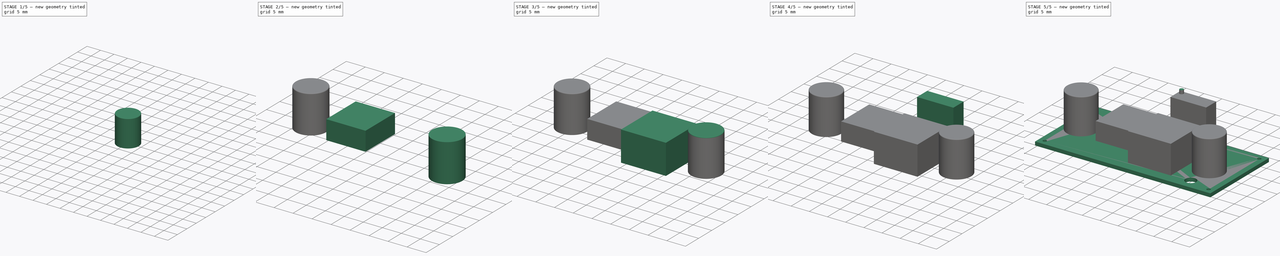
[diagram: build sequence overview — one tinted view per stage of 5, left to right]
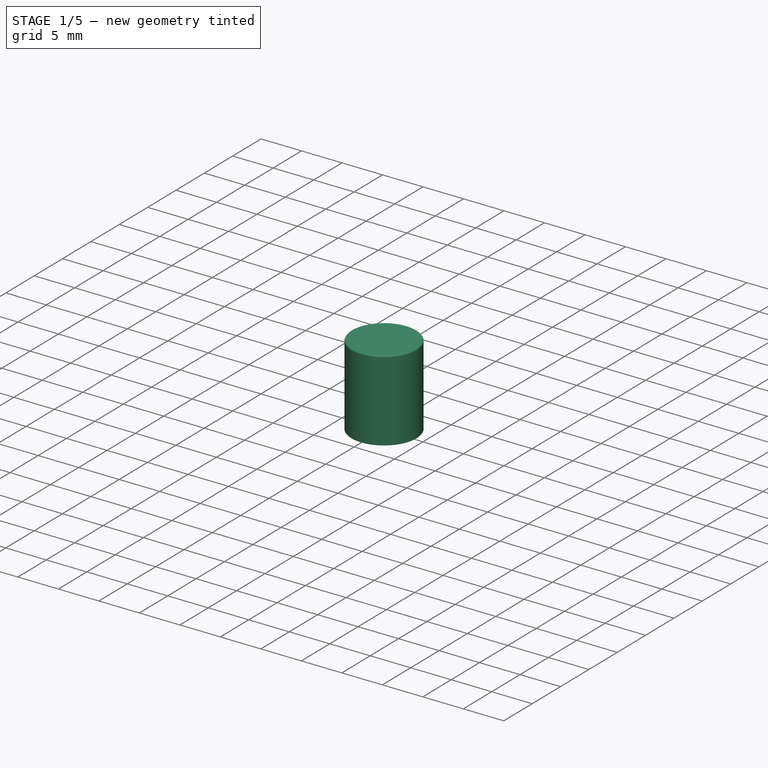
[diagram: stage 1 of 5 — iso view after this stage's code; geometry added in this stage tinted green]
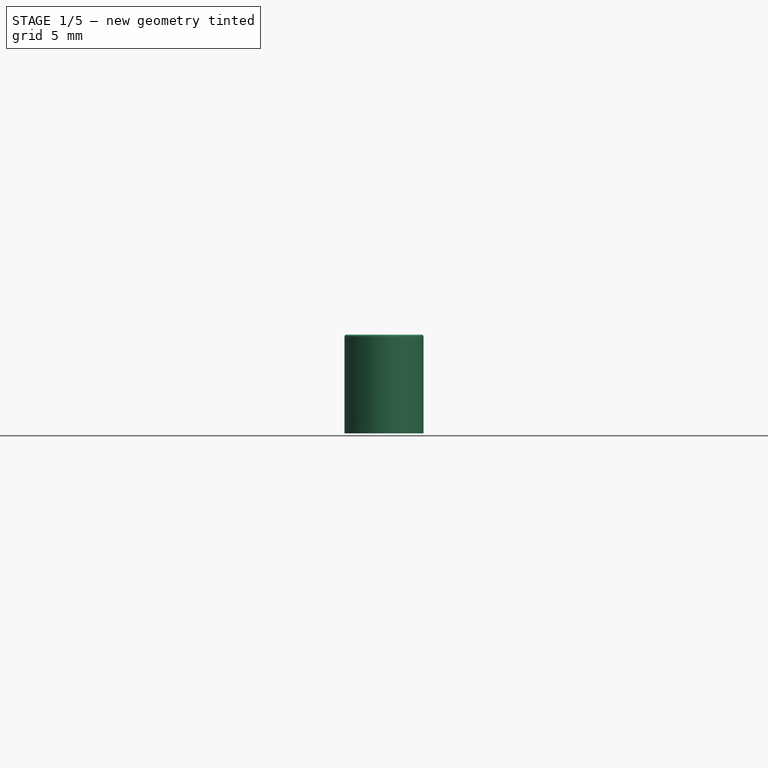
[diagram: stage 1 of 5 — front view after this stage's code; geometry added in this stage tinted green]
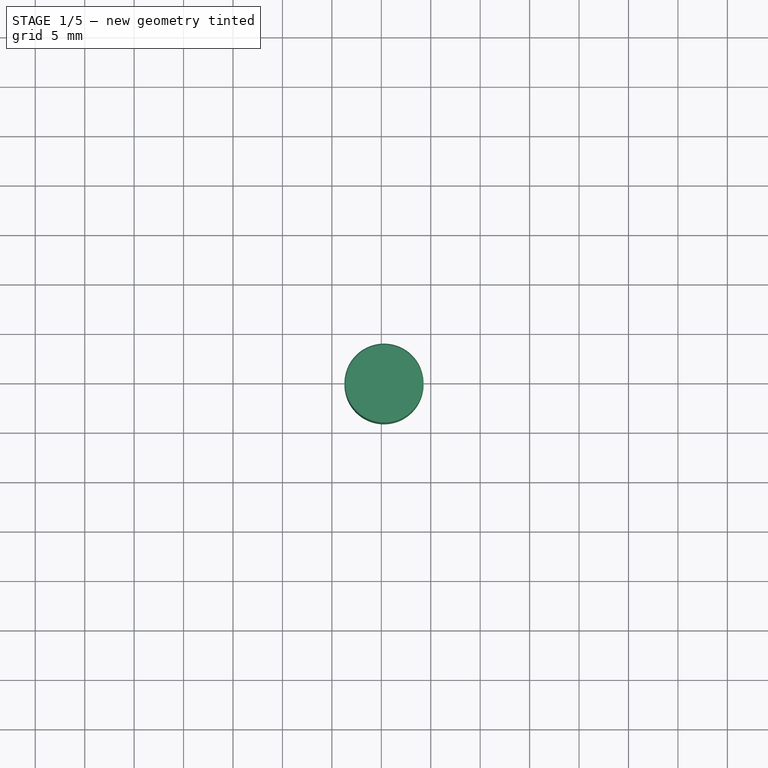
[diagram: stage 1 of 5 — top view after this stage's code; geometry added in this stage tinted green]
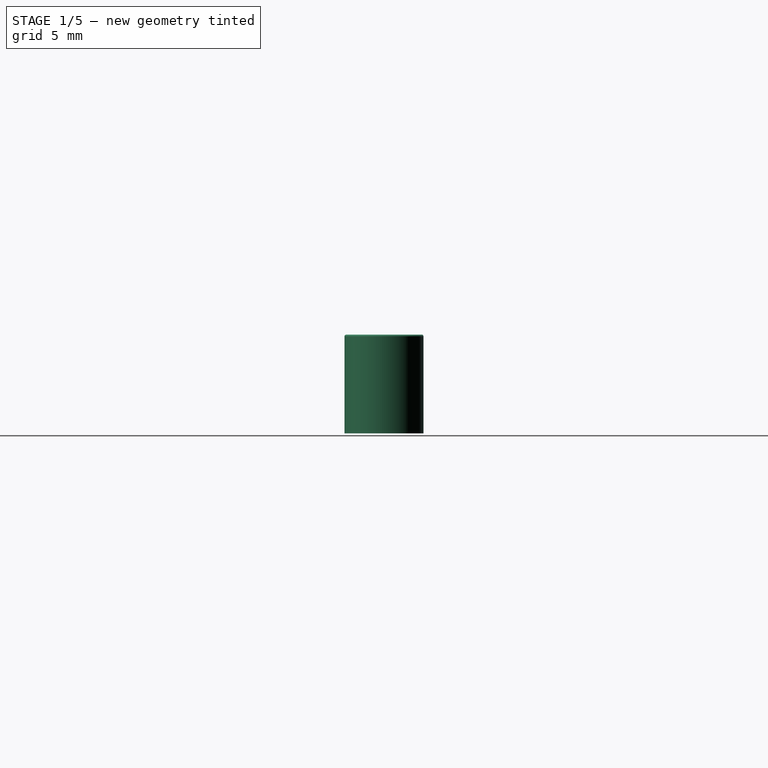
[diagram: stage 1 of 5 — right view after this stage's code; geometry added in this stage tinted green]
FCSTD DOCUMENT  (FreeCAD 0.16R6692 (Git))
Label: step-down-n9505
License: All rights reserved
LicenseURL: http://en.wikipedia.org/wiki/All_rights_reserved
objects: Sketcher::SketchObject×8, PartDesign::Pad×7, Part::FeaturePython×6, PartDesign::Fillet×3
note: 31 computed .brp shape members not serialized (recipe doc carries the construction recipe); baked Part::Feature solids carry a one-line shape summary decoded from their .brp

FEATURE [Sketcher::SketchObject] Sketch002  label="parts001"
  sketch-geometry (1):
    g0: Circle CenterX=-19.7286 CenterY=-0.104942 CenterZ=0 NormalX=0 NormalY=0 NormalZ=1 Radius=4
  constraints (1):
    c: Radius(g0) = 4
FEATURE [Sketcher::SketchObject] Sketch003  label="parts002"
  sketch-geometry (4):
    g0: LineSegment StartX=-13.3686 StartY=7.65234 StartZ=0 EndX=-3.04249 EndY=7.65234 EndZ=0
    g1: LineSegment StartX=-3.04249 StartY=7.65234 StartZ=0 EndX=-3.04249 EndY=-3.41128 EndZ=0
    g2: LineSegment StartX=-3.04249 StartY=-3.41128 StartZ=0 EndX=-13.3686 EndY=-3.41128 EndZ=0
    g3: LineSegment StartX=-13.3686 StartY=-3.41128 StartZ=0 EndX=-13.3686 EndY=7.65234 EndZ=0
  constraints (8):
    c: Coincident(g0,g1)
    c: Coincident(g1,g2)
    c: Coincident(g2,g3)
    c: Coincident(g3,g0)
    c: Horizontal(g0)
    c: Horizontal(g2)
    c: Vertical(g1)
    c: Vertical(g3)
FEATURE [Sketcher::SketchObject] Sketch004  label="parts003"
  sketch-geometry (4):
    g0: LineSegment StartX=-0.474332 StartY=3.05585 StartZ=0 EndX=11.5257 EndY=3.05585 EndZ=0
    g1: LineSegment StartX=11.5257 StartY=3.05585 StartZ=0 EndX=11.5257 EndY=-8.94415 EndZ=0
    g2: LineSegment StartX=11.5257 StartY=-8.94415 StartZ=0 EndX=-0.474332 EndY=-8.94415 EndZ=0
    g3: LineSegment StartX=-0.474332 StartY=-8.94415 StartZ=0 EndX=-0.474332 EndY=3.05585 EndZ=0
  constraints (10):
    c: Coincident(g0,g1)
    c: Coincident(g1,g2)
    c: Coincident(g2,g3)
    c: Coincident(g3,g0)
    c: Horizontal(g0)
    c: Horizontal(g2)
    c: Vertical(g1)
    c: Vertical(g3)
    c: DistanceY(g1,g1) = 12
    c: DistanceX(g2,g2) = 12
FEATURE [Sketcher::SketchObject] Sketch006  label="parts005"
  sketch-geometry (1):
    g0: Circle CenterX=17.3186 CenterY=-1.85006 CenterZ=0 NormalX=0 NormalY=0 NormalZ=1 Radius=4
  constraints (1):
    c: Radius(g0) = 4
FEATURE [Sketcher::SketchObject] Sketch007  label="parts004"
  sketch-geometry (4):
    g0: LineSegment StartX=0.569451 StartY=10.5319 StartZ=0 EndX=10.5695 EndY=10.5319 EndZ=0
    g1: LineSegment StartX=10.5695 StartY=10.5319 StartZ=0 EndX=10.5695 EndY=6.53193 EndZ=0
    g2: LineSegment StartX=10.5695 StartY=6.53193 StartZ=0 EndX=0.569451 EndY=6.53193 EndZ=0
    g3: LineSegment StartX=0.569451 StartY=6.53193 StartZ=0 EndX=0.569451 EndY=10.5319 EndZ=0
  constraints (10):
    c: Coincident(g0,g1)
    c: Coincident(g1,g2)
    c: Coincident(g2,g3)
    c: Coincident(g3,g0)
    c: Horizontal(g0)
    c: Horizontal(g2)
    c: Vertical(g1)
    c: Vertical(g3)
    c: DistanceX(g2,g2) = 10
    c: DistanceY(g1,g1) = 4
FEATURE [PartDesign::Pad] Pad001
  Length = 10
  Length2 = 100
  Sketch = -> Sketch002
  Type = 0
FEATURE [PartDesign::Fillet] Fillet
  Base = -> Pad001 [Edge3]
  Radius = 0.2
FEATURE [Part::FeaturePython] Clone005  label="Clone of Fillet"  # Draft clone (typed FeaturePython)
  Objects = -> [Fillet]
  Placement = pos=(0,0,1) rot=(0,0,1;0rad)
  Scale = (1,1,1)
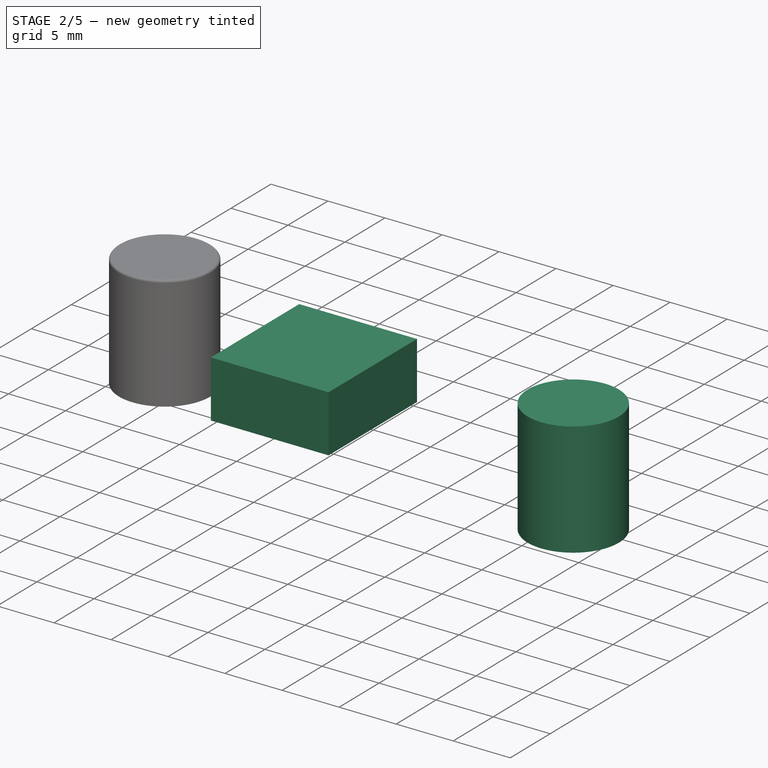
[diagram: stage 2 of 5 — iso view after this stage's code; geometry added in this stage tinted green]
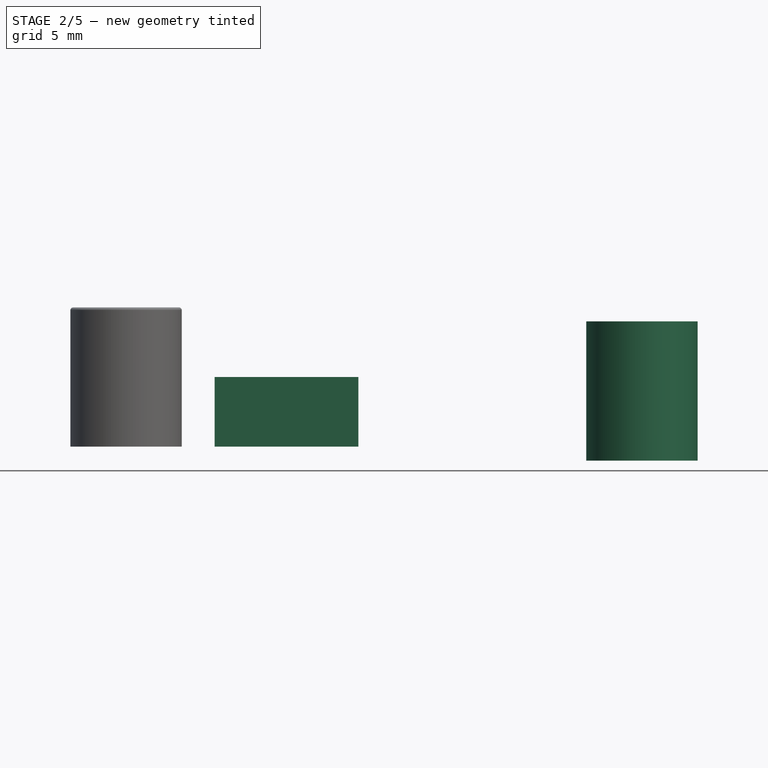
[diagram: stage 2 of 5 — front view after this stage's code; geometry added in this stage tinted green]
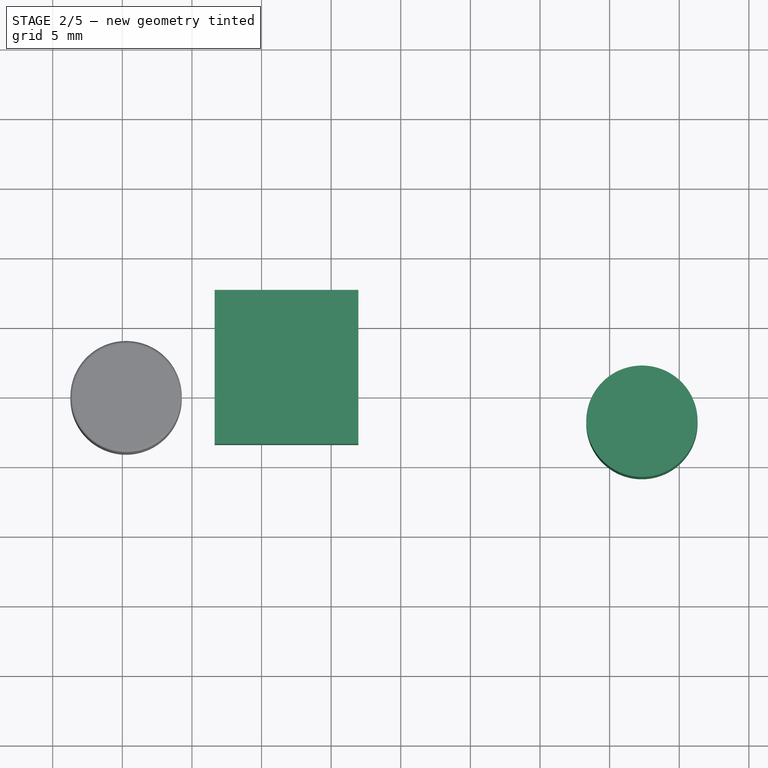
[diagram: stage 2 of 5 — top view after this stage's code; geometry added in this stage tinted green]
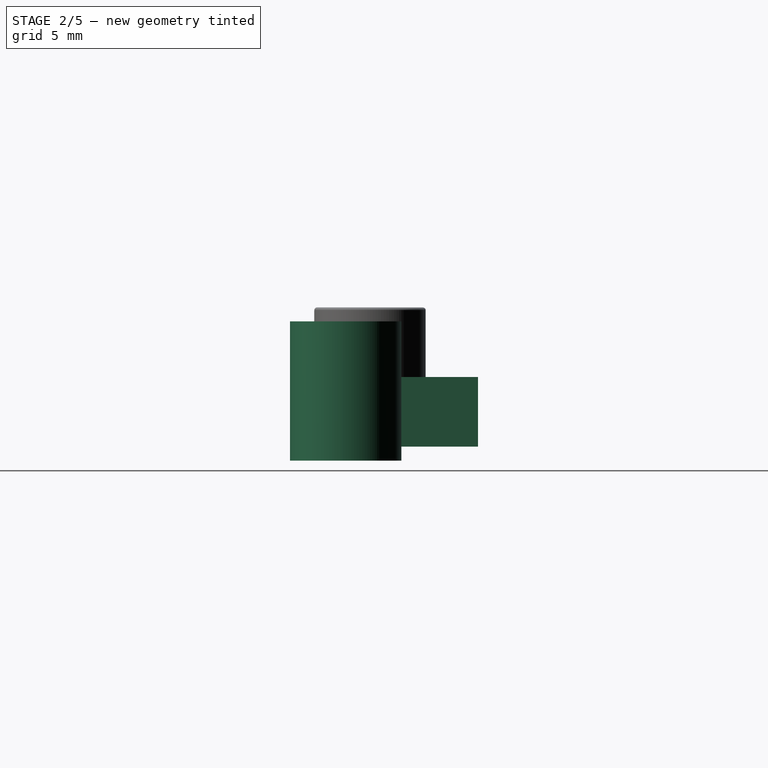
[diagram: stage 2 of 5 — right view after this stage's code; geometry added in this stage tinted green]
FEATURE [PartDesign::Pad] Pad002
  Length = 5
  Length2 = 100
  Sketch = -> Sketch003
  Type = 0
FEATURE [PartDesign::Pad] Pad003
  Length = 10
  Length2 = 100
  Sketch = -> Sketch006
  Type = 0
FEATURE [Part::FeaturePython] Clone004  label="Clone of Pad002"  # Draft clone (typed FeaturePython)
  Objects = -> [Pad002]
  Placement = pos=(0,0,1) rot=(0,0,1;0rad)
  Scale = (1,1,1)
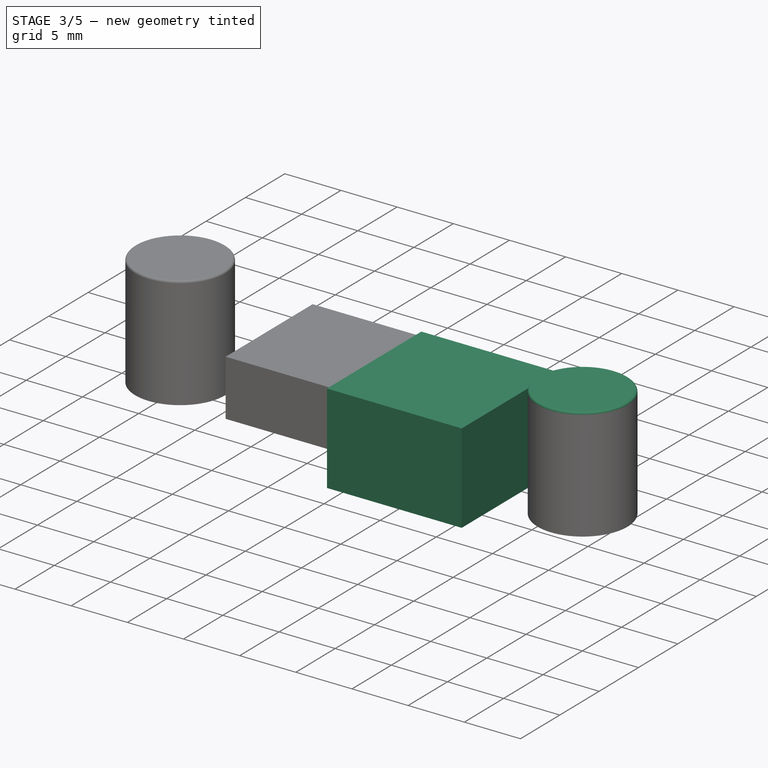
[diagram: stage 3 of 5 — iso view after this stage's code; geometry added in this stage tinted green]
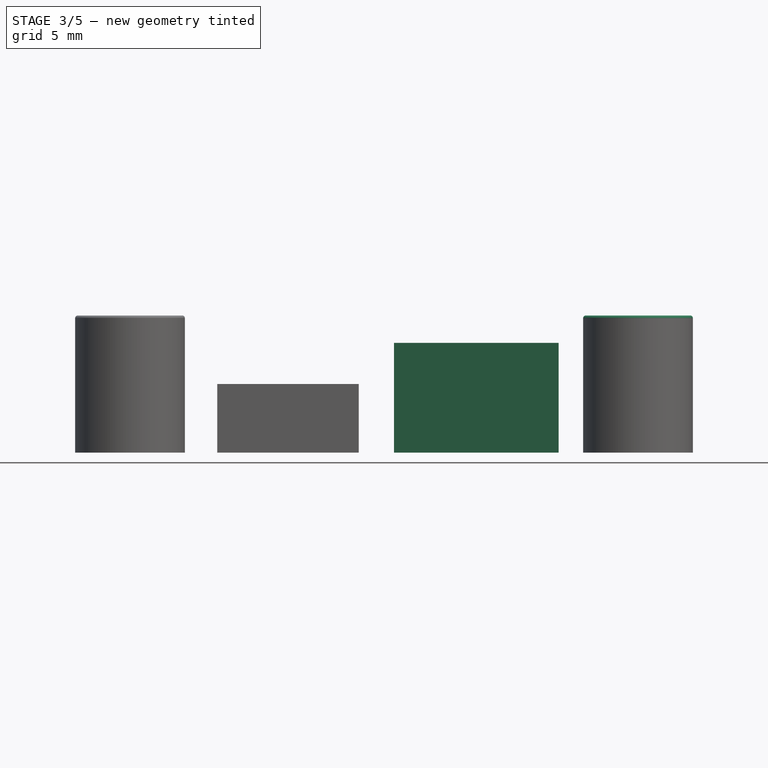
[diagram: stage 3 of 5 — front view after this stage's code; geometry added in this stage tinted green]
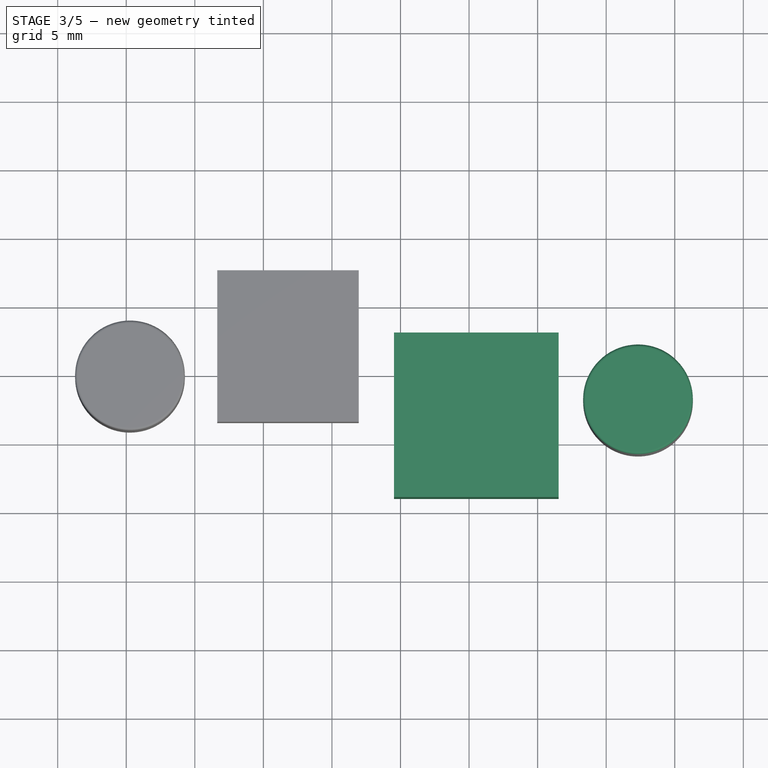
[diagram: stage 3 of 5 — top view after this stage's code; geometry added in this stage tinted green]
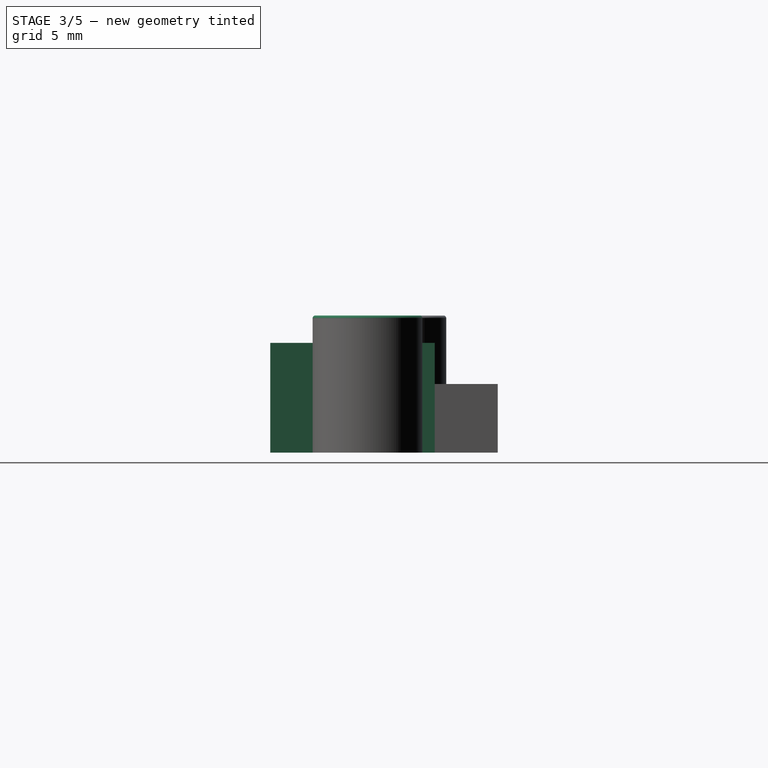
[diagram: stage 3 of 5 — right view after this stage's code; geometry added in this stage tinted green]
FEATURE [PartDesign::Fillet] Fillet001
  Base = -> Pad003 [Edge3]
  Radius = 0.2
FEATURE [PartDesign::Pad] Pad004
  Length = 8
  Length2 = 100
  Sketch = -> Sketch004
  Type = 0
FEATURE [Part::FeaturePython] Clone002  label="Clone of Pad004"  # Draft clone (typed FeaturePython)
  Objects = -> [Pad004]
  Placement = pos=(0,0,1) rot=(0,0,1;0rad)
  Scale = (1,1,1)
FEATURE [Part::FeaturePython] Clone003  label="Clone of Fillet001"  # Draft clone (typed FeaturePython)
  Objects = -> [Fillet001]
  Placement = pos=(0,0,1) rot=(0,0,1;0rad)
  Scale = (1,1,1)
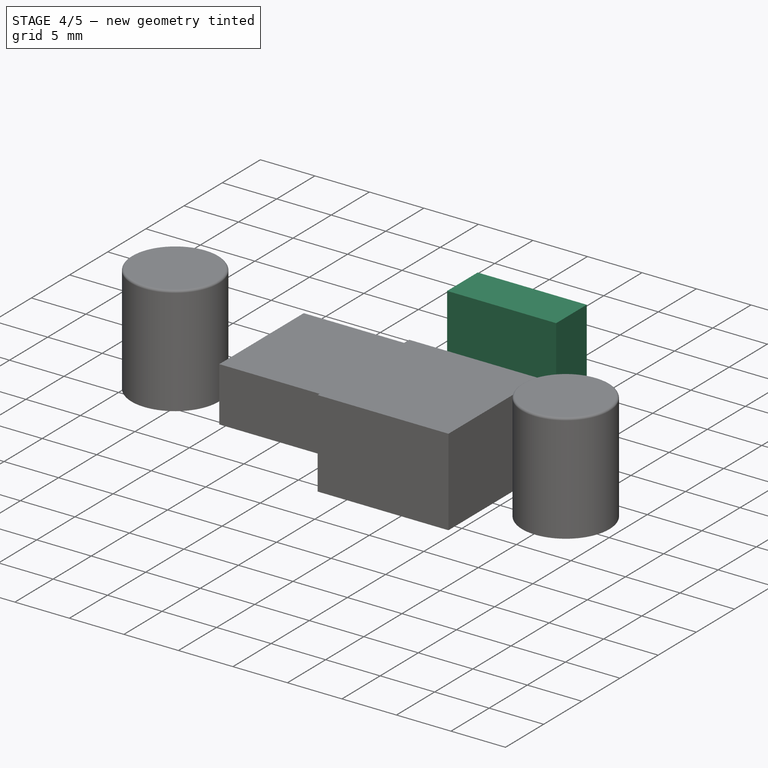
[diagram: stage 4 of 5 — iso view after this stage's code; geometry added in this stage tinted green]
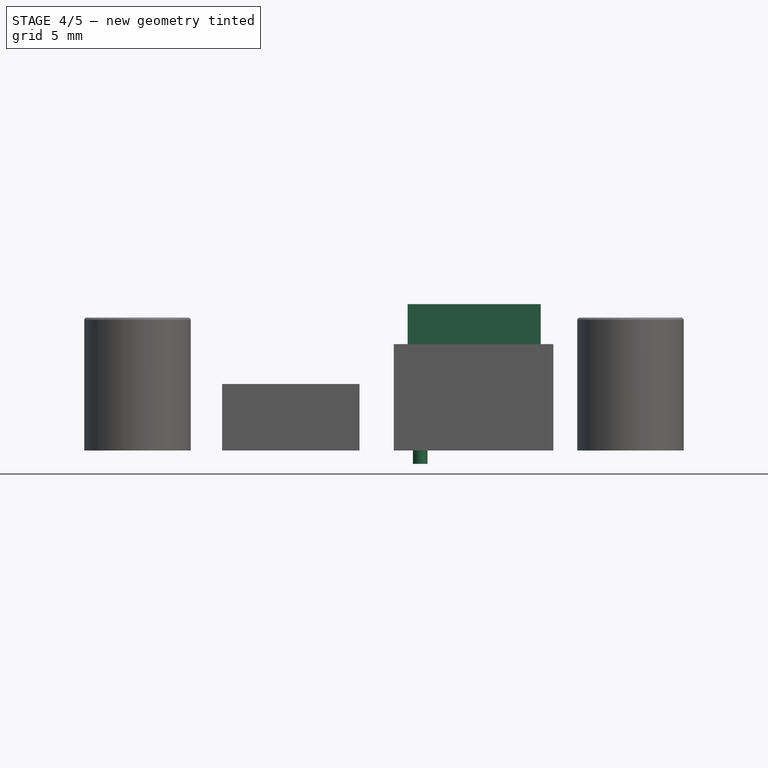
[diagram: stage 4 of 5 — front view after this stage's code; geometry added in this stage tinted green]
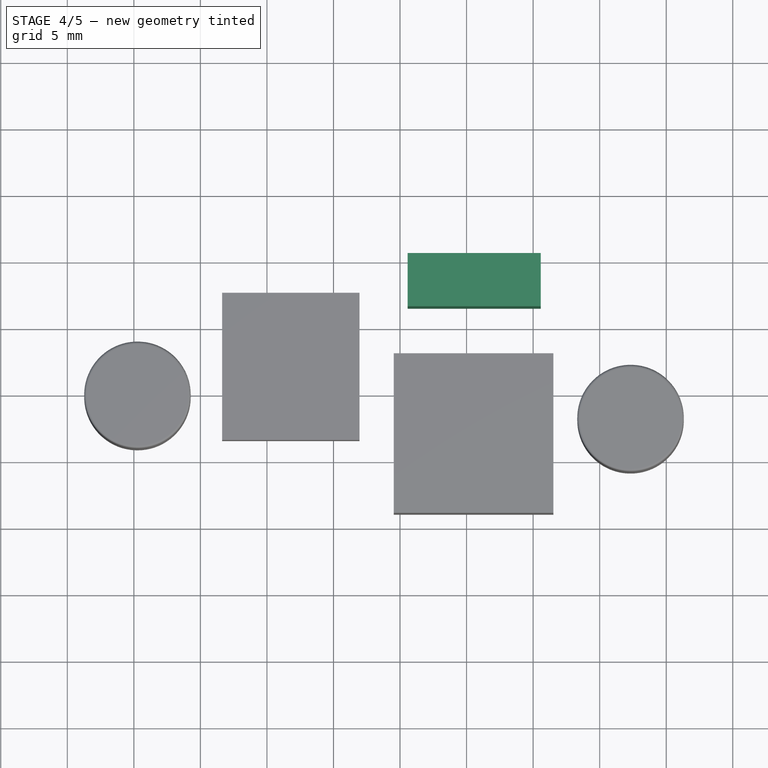
[diagram: stage 4 of 5 — top view after this stage's code; geometry added in this stage tinted green]
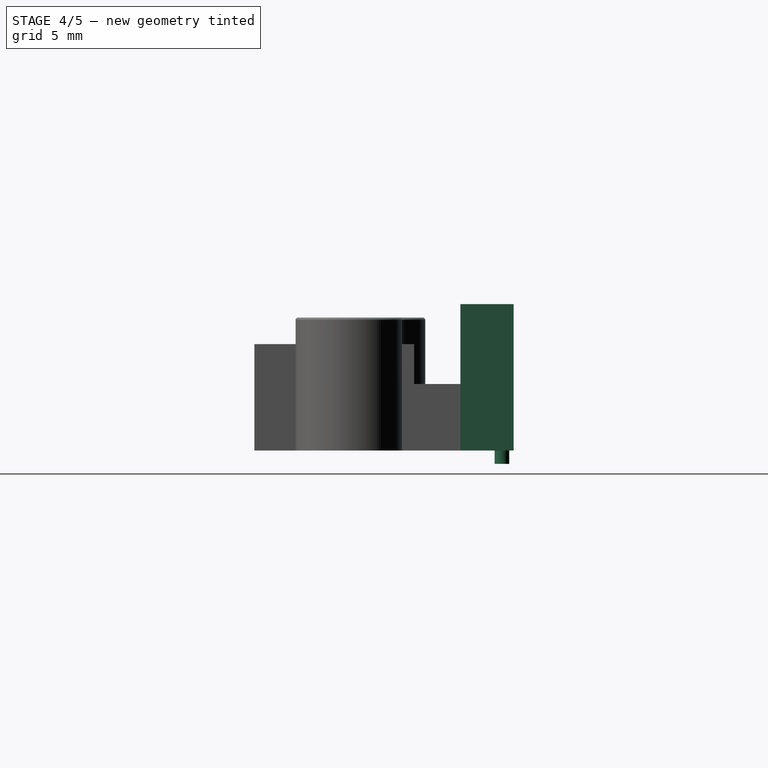
[diagram: stage 4 of 5 — right view after this stage's code; geometry added in this stage tinted green]
FEATURE [PartDesign::Pad] Pad005
  Length = 11
  Length2 = 100
  Sketch = -> Sketch007
  Type = 0
FEATURE [Sketcher::SketchObject] Sketch008  label="parts006"
  sketch-geometry (1):
    g0: Circle CenterX=1.51629 CenterY=9.65199 CenterZ=0 NormalX=0 NormalY=0 NormalZ=1 Radius=0.55
  constraints (1):
    c: Radius(g0) = 0.55
FEATURE [PartDesign::Pad] Pad006
  Length = 12
  Length2 = 100
  Sketch = -> Sketch008
  Type = 0
FEATURE [Part::FeaturePython] Clone001  label="Clone of Pad005"  # Draft clone (typed FeaturePython)
  Objects = -> [Pad005]
  Placement = pos=(0,0,1) rot=(0,0,1;0rad)
  Scale = (1,1,1)
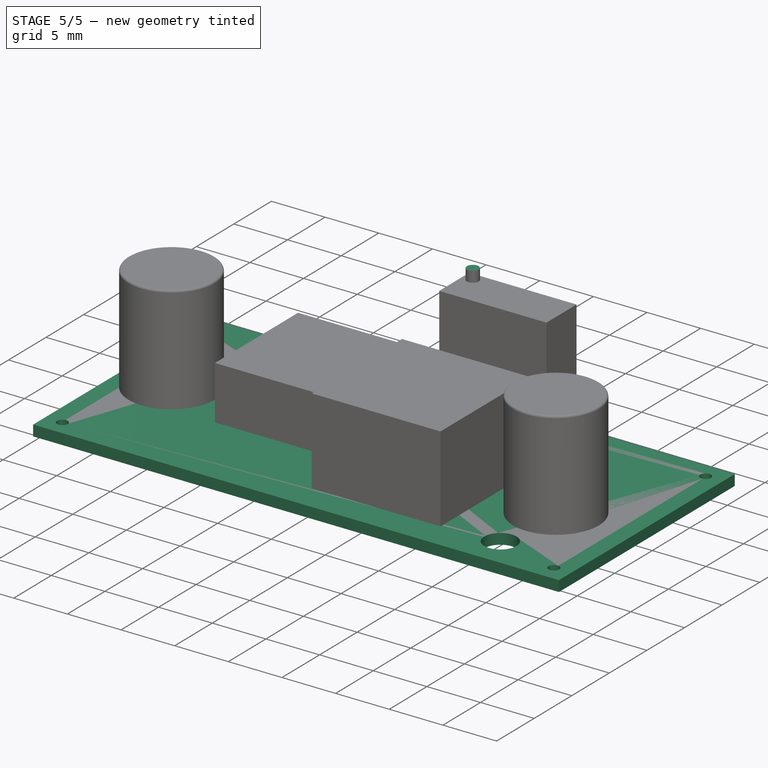
[diagram: stage 5 of 5 — iso view after this stage's code; geometry added in this stage tinted green]
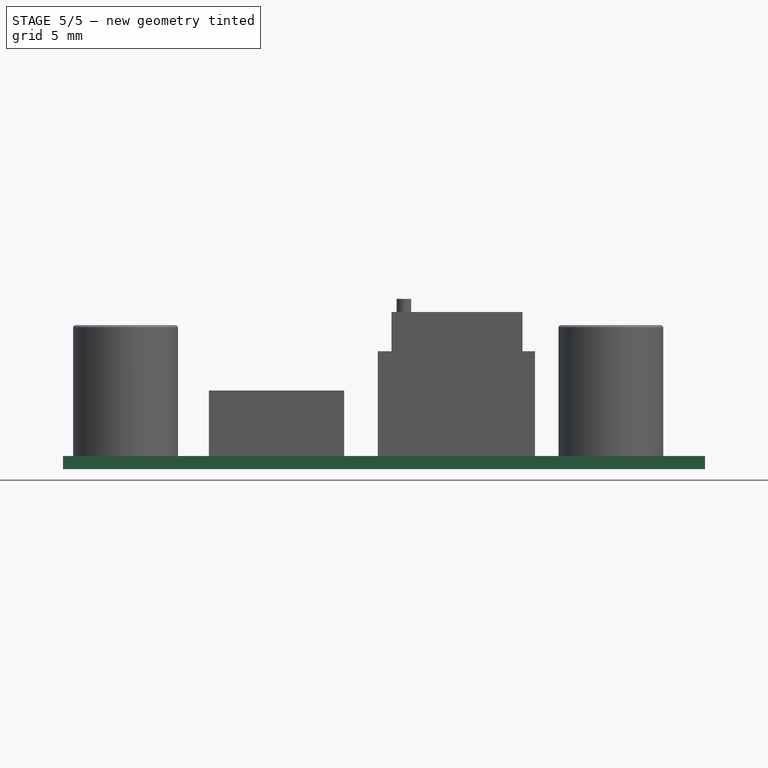
[diagram: stage 5 of 5 — front view after this stage's code; geometry added in this stage tinted green]
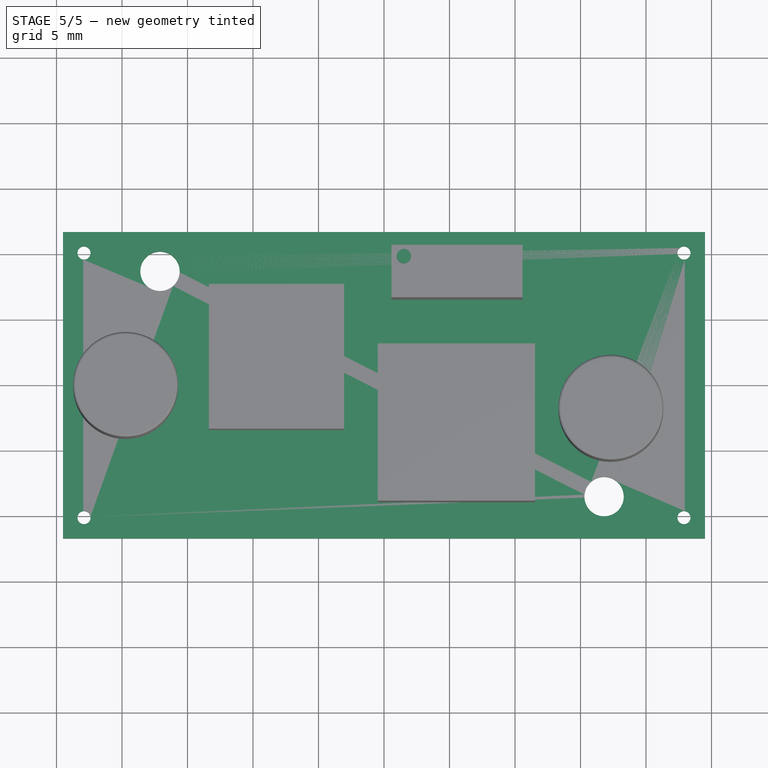
[diagram: stage 5 of 5 — top view after this stage's code; geometry added in this stage tinted green]
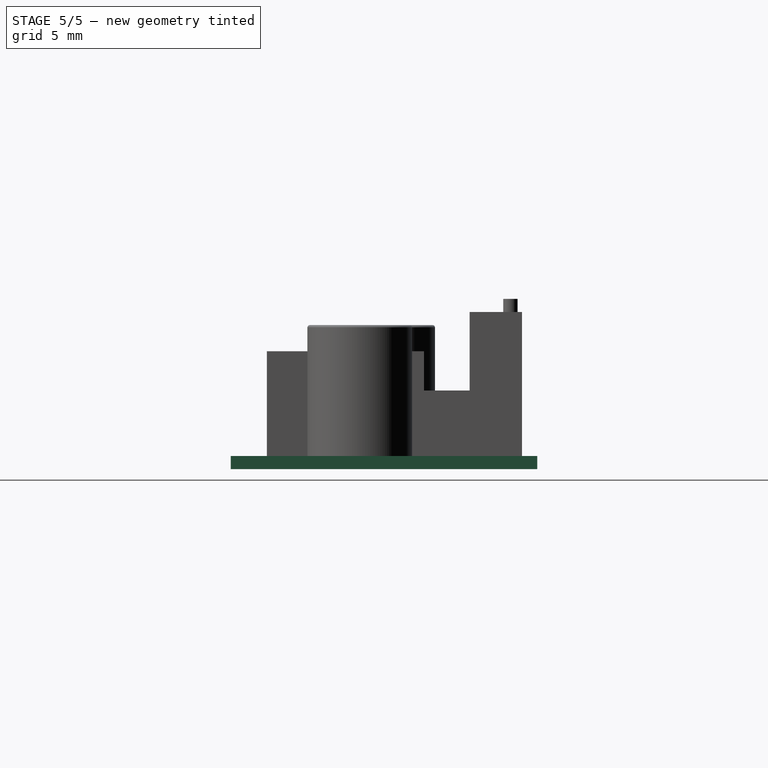
[diagram: stage 5 of 5 — right view after this stage's code; geometry added in this stage tinted green]
FEATURE [Sketcher::SketchObject] Sketch  label="pcb"
  sketch-geometry (22):
    g0: LineSegment StartX=-24.5 StartY=11.7 StartZ=0 EndX=24.5 EndY=11.7 EndZ=0
    g1: LineSegment StartX=24.5 StartY=11.7 StartZ=0 EndX=24.5 EndY=-11.7 EndZ=0
    g2: LineSegment StartX=24.5 StartY=-11.7 StartZ=0 EndX=-24.5 EndY=-11.7 EndZ=0
    g3: LineSegment StartX=-24.5 StartY=-11.7 StartZ=0 EndX=-24.5 EndY=11.7 EndZ=0
    g4: Circle CenterX=-17.1 CenterY=8.7 CenterZ=0 NormalX=0 NormalY=0 NormalZ=1 Radius=1.5
    g5: Circle CenterX=16.8 CenterY=-8.5 CenterZ=0 NormalX=0 NormalY=0 NormalZ=1 Radius=1.5
    g6: Circle CenterX=-22.9 CenterY=-10.1 CenterZ=0 NormalX=0 NormalY=0 NormalZ=1 Radius=0.5
    g7: Circle CenterX=22.9 CenterY=10.1 CenterZ=0 NormalX=0 NormalY=0 NormalZ=1 Radius=0.5
    g8: Circle CenterX=-22.9 CenterY=10.1 CenterZ=0 NormalX=0 NormalY=0 NormalZ=1 Radius=0.5
    g9: Circle CenterX=22.9 CenterY=-10.1 CenterZ=0 NormalX=0 NormalY=0 NormalZ=1 Radius=0.5
    g10: LineSegment [constr] StartX=-22.9 StartY=10.1 StartZ=0 EndX=-24.5 EndY=10.1 EndZ=0
    g11: LineSegment [constr] StartX=-22.9 StartY=10.1 StartZ=0 EndX=-22.9 EndY=11.7 EndZ=0
    g12: LineSegment [constr] StartX=-22.9 StartY=-10.1 StartZ=0 EndX=-22.9 EndY=-11.7 EndZ=0
    g13: LineSegment [constr] StartX=-22.9 StartY=-10.1 StartZ=0 EndX=-24.5 EndY=-10.1 EndZ=0
    g14: LineSegment [constr] StartX=22.9 StartY=10.1 StartZ=0 EndX=24.5 EndY=10.1 EndZ=0
    g15: LineSegment [constr] StartX=22.9 StartY=10.1 StartZ=0 EndX=22.9 EndY=11.7 EndZ=0
    g16: LineSegment [constr] StartX=22.9 StartY=-10.1 StartZ=0 EndX=24.5 EndY=-10.1 EndZ=0
    g17: LineSegment [constr] StartX=22.9 StartY=-10.1 StartZ=0 EndX=22.9 EndY=-11.7 EndZ=0
    g18: LineSegment [constr] StartX=-17.1 StartY=8.7 StartZ=0 EndX=-17.1 EndY=11.7 EndZ=0
    g19: LineSegment [constr] StartX=16.8 StartY=-8.5 StartZ=0 EndX=16.8 EndY=-11.7 EndZ=0
    g20: LineSegment [constr] StartX=-17.1 StartY=8.7 StartZ=0 EndX=-24.5 EndY=8.7 EndZ=0
    g21: LineSegment [constr] StartX=16.8 StartY=-8.5 StartZ=0 EndX=24.5 EndY=-8.5 EndZ=0
  constraints (65):
    c: Coincident(g0,g1)
    c: Coincident(g1,g2)
    c: Coincident(g2,g3)
    c: Coincident(g3,g0)
    c: Horizontal(g0)
    c: Horizontal(g2)
    c: Vertical(g1)
    c: Vertical(g3)
    c: DistanceX(g0,g0) = 49
    c: DistanceY(g1,g1) = 23.4
    c: Radius(g7) = 0.5
    c: Symmetric(g0,g0,g-2)
    c: Symmetric(g0,g1,g-1)
    c: PointOnObject(g10,g3)
    c: Horizontal(g10)
    c: Coincident(g11,g8)
    c: Vertical(g11)
    c: Coincident(g12,g6)
    c: PointOnObject(g12,g2)
    c: Vertical(g12)
    c: PointOnObject(g13,g3)
    c: Horizontal(g13)
    c: Coincident(g6,g13)
    c: Coincident(g8,g10)
    c: Coincident(g14,g7)
    c: Horizontal(g14)
    c: Vertical(g15)
    c: Horizontal(g16)
    c: Coincident(g17,g9)
    c: PointOnObject(g17,g2)
    c: Vertical(g17)
    c: Coincident(g9,g16)
    c: Coincident(g7,g15)
    c: Equal(g16,g14)
    c: PointOnObject(g16,g1)
    c: PointOnObject(g14,g1)
    c: Equal(g11,g12)
    c: Equal(g12,g17)
    c: Equal(g17,g15)
    c: PointOnObject(g15,g0)
    c: PointOnObject(g11,g0)
    c: Equal(g10,g13)
    c: DistanceX(g10,g10) = 1.6
    c: DistanceY(g11,g11) = 1.6
    c: DistanceX(g14,g14) = 1.6
    c: Coincident(g18,g4)
    c: PointOnObject(g18,g0)
    c: Vertical(g18)
    c: Coincident(g19,g5)
    c: PointOnObject(g19,g2)
    c: Vertical(g19)
    c: PointOnObject(g20,g3)
    c: Horizontal(g20)
    c: PointOnObject(g21,g1)
    c: Horizontal(g21)
    c: Coincident(g5,g21)
    c: Coincident(g4,g20)
    c: DistanceX(g20,g20) = 7.4
    c: DistanceX(g21,g21) = 7.7
    c: Equal(g7,g9)
    c: Equal(g9,g6)
    c: Equal(g6,g8)
    c: Equal(g5,g4)
    c: Radius(g5) = 1.5
    c: DistanceY(g18,g18) = 3
FEATURE [Sketcher::SketchObject] Sketch001  label="parts"
  sketch-geometry (14):
    g0: Circle CenterX=-21.1746 CenterY=-0.030732 CenterZ=0 NormalX=0 NormalY=0 NormalZ=1 Radius=4
    g1: Circle CenterX=17.3186 CenterY=-1.85006 CenterZ=0 NormalX=0 NormalY=0 NormalZ=1 Radius=4
    g2: LineSegment StartX=-0.474332 StartY=3.05585 StartZ=0 EndX=11.5257 EndY=3.05585 EndZ=0
    g3: LineSegment StartX=11.5257 StartY=3.05585 StartZ=0 EndX=11.5257 EndY=-8.94415 EndZ=0
    g4: LineSegment StartX=11.5257 StartY=-8.94415 StartZ=0 EndX=-0.474332 EndY=-8.94415 EndZ=0
    g5: LineSegment StartX=-0.474332 StartY=-8.94415 StartZ=0 EndX=-0.474332 EndY=3.05585 EndZ=0
    g6: LineSegment StartX=0.569451 StartY=10.5319 StartZ=0 EndX=10.5695 EndY=10.5319 EndZ=0
    g7: LineSegment StartX=10.5695 StartY=10.5319 StartZ=0 EndX=10.5695 EndY=6.53193 EndZ=0
    g8: LineSegment StartX=10.5695 StartY=6.53193 StartZ=0 EndX=0.569451 EndY=6.53193 EndZ=0
    g9: LineSegment StartX=0.569451 StartY=6.53193 StartZ=0 EndX=0.569451 EndY=10.5319 EndZ=0
    g10: LineSegment StartX=-13.3686 StartY=7.65234 StartZ=0 EndX=-3.04249 EndY=7.65234 EndZ=0
    g11: LineSegment StartX=-3.04249 StartY=7.65234 StartZ=0 EndX=-3.04249 EndY=-3.41128 EndZ=0
    g12: LineSegment StartX=-3.04249 StartY=-3.41128 StartZ=0 EndX=-13.3686 EndY=-3.41128 EndZ=0
    g13: LineSegment StartX=-13.3686 StartY=-3.41128 StartZ=0 EndX=-13.3686 EndY=7.65234 EndZ=0
  constraints (30):
    c: Radius(g0) = 4
    c: Radius(g1) = 4
    c: Coincident(g2,g3)
    c: Coincident(g3,g4)
    c: Coincident(g4,g5)
    c: Coincident(g5,g2)
    c: Horizontal(g2)
    c: Horizontal(g4)
    c: Vertical(g3)
    c: Vertical(g5)
    c: DistanceY(g3,g3) = 12
    c: DistanceX(g4,g4) = 12
    c: Coincident(g6,g7)
    c: Coincident(g7,g8)
    c: Coincident(g8,g9)
    c: Coincident(g9,g6)
    c: Horizontal(g6)
    c: Horizontal(g8)
    c: Vertical(g7)
    c: Vertical(g9)
    c: DistanceX(g8,g8) = 10
    c: DistanceY(g7,g7) = 4
    c: Coincident(g10,g11)
    c: Coincident(g11,g12)
    c: Coincident(g12,g13)
    c: Coincident(g13,g10)
    c: Horizontal(g10)
    c: Horizontal(g12)
    c: Vertical(g11)
    c: Vertical(g13)
FEATURE [PartDesign::Pad] Pad
  Length = 1
  Length2 = 100
  Sketch = -> Sketch
  Type = 0
FEATURE [PartDesign::Fillet] Fillet002
  Base = -> Pad005 [Edge4,Edge7,Edge10,Edge12]
  Radius = 0.1
FEATURE [Part::FeaturePython] Clone  label="Clone of Pad006"  # Draft clone (typed FeaturePython)
  Objects = -> [Pad006]
  Placement = pos=(0,0,1) rot=(0,0,1;0rad)
  Scale = (1,1,1)
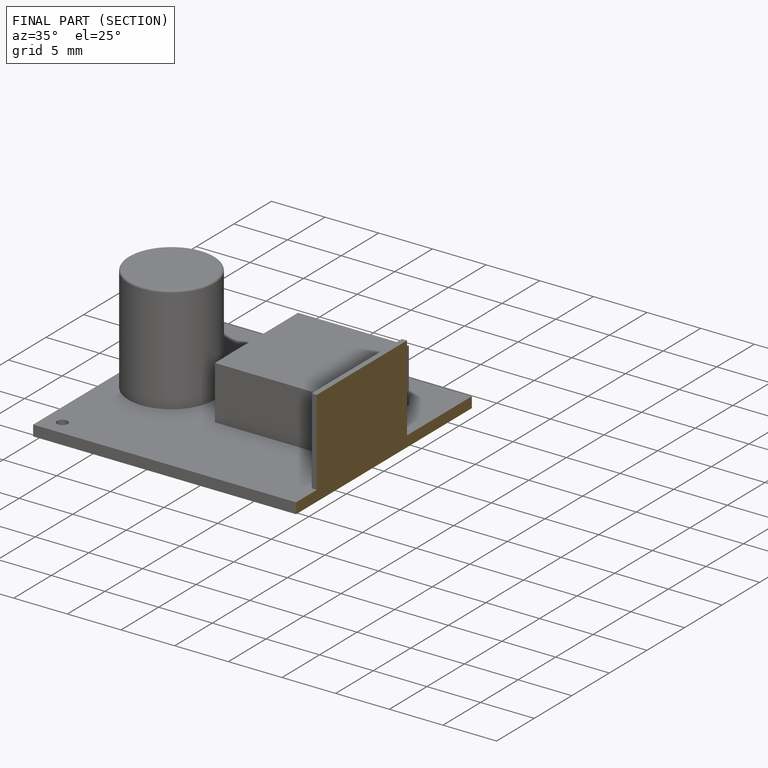
[diagram: finished part — half-section view (interior)]
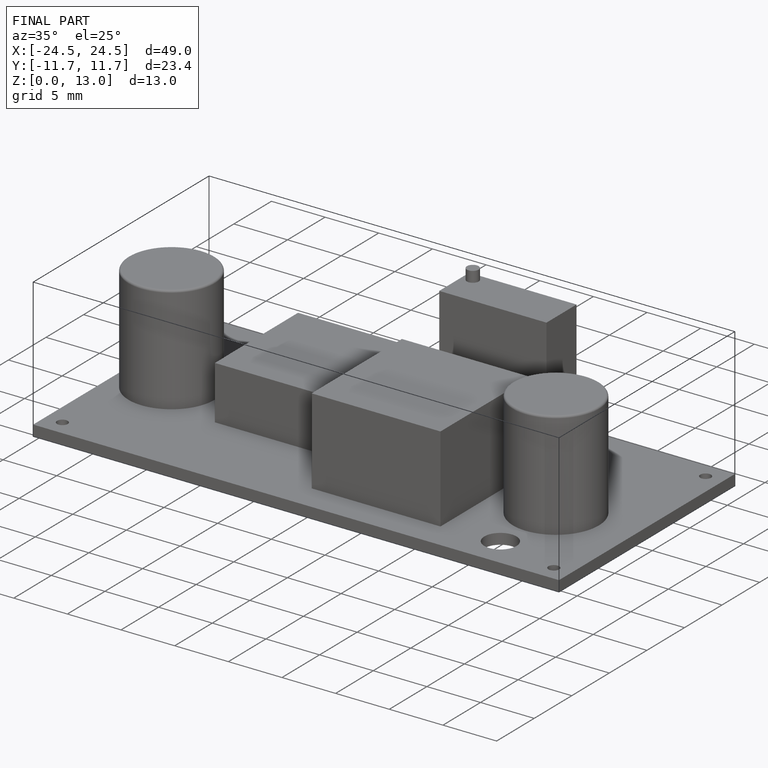
[diagram: finished part — iso view with bounding-box wireframe]
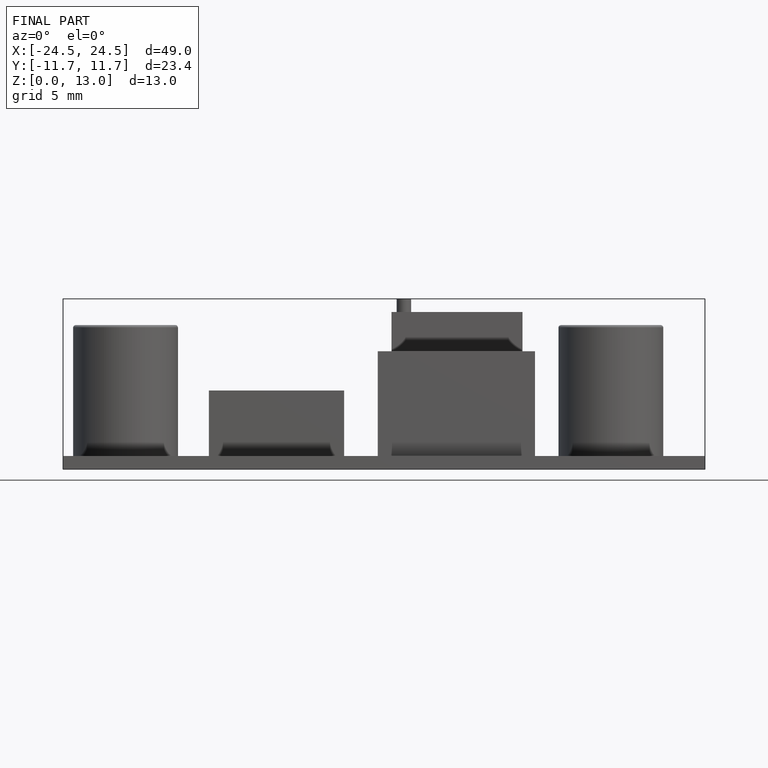
[diagram: finished part — front view with bounding-box wireframe]
